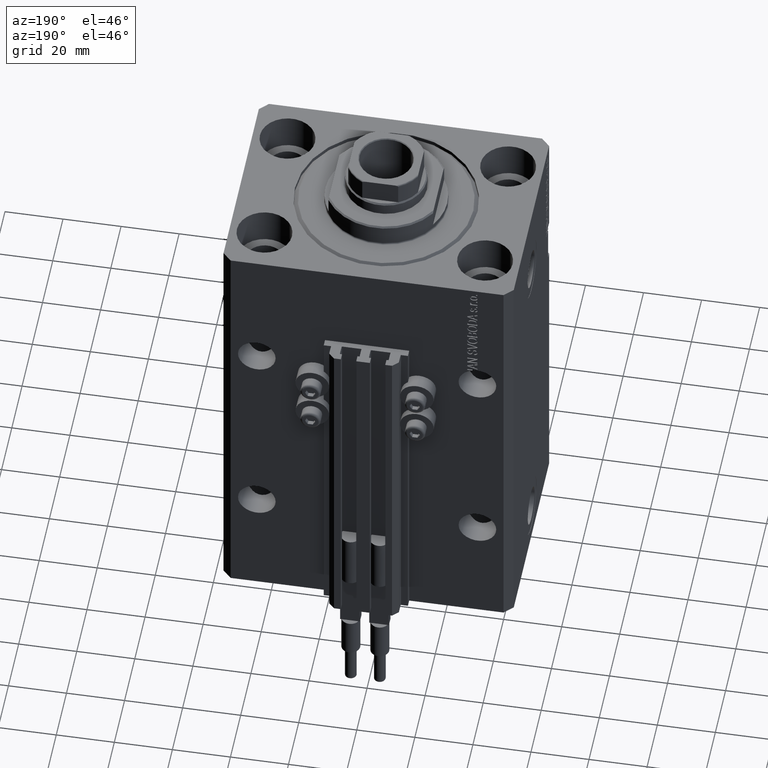
[diagram: clean part render]
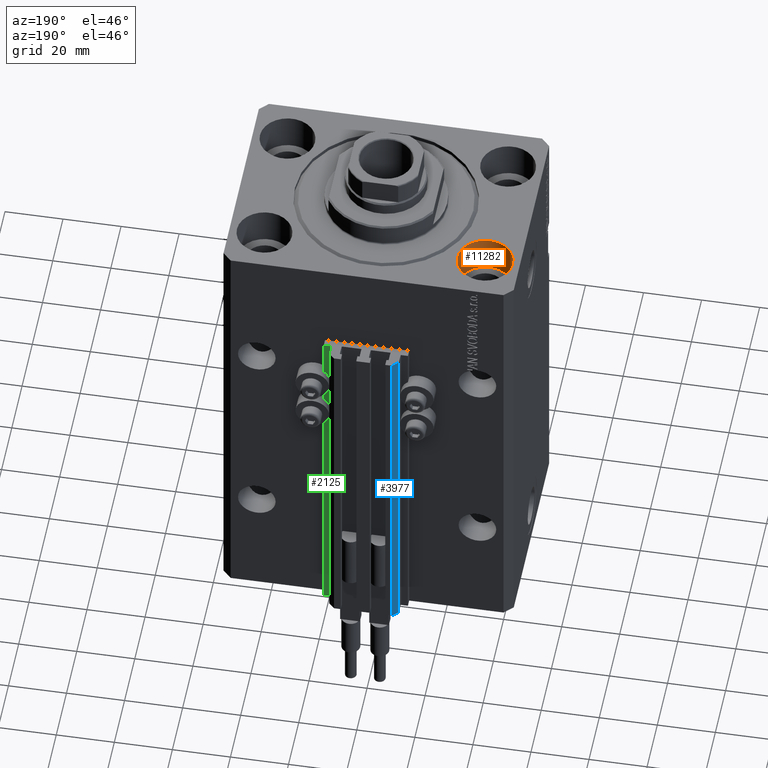
[diagram: same view with three faces highlighted in distinct colors, each labeled with its STEP entity id]
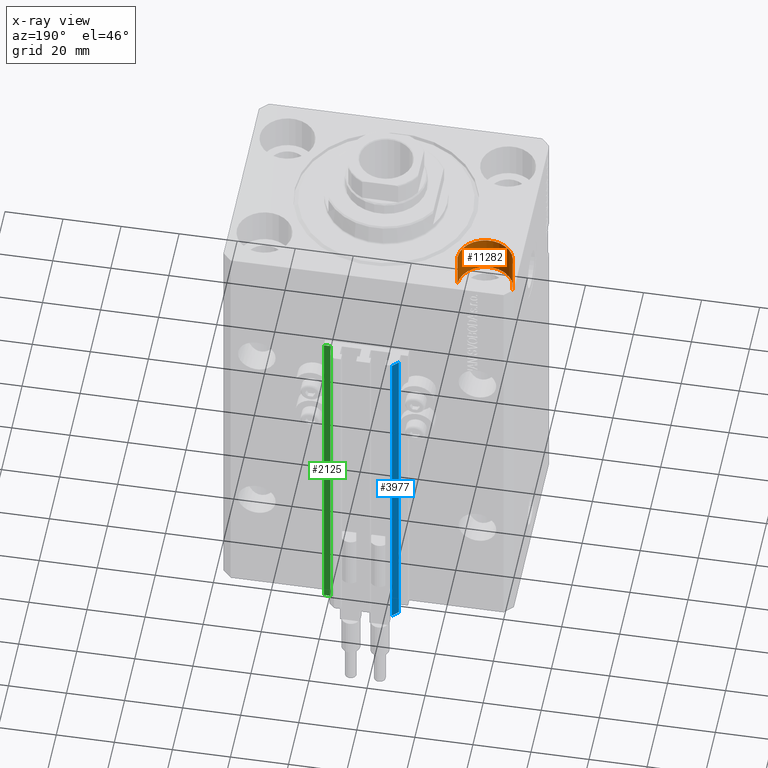
[diagram: x-ray of the same camera — body ghosted, the three highlighted faces saturated]
A machine part, auxiliary view with three faces highlighted in distinct colors.
The next image is the same camera in x-ray (body ghosted, the three faces saturated) — at least one of them is partly hidden behind the body in this view.
Their STEP definitions:

[orange] entity #11282 — the highlighted cylindrical surface (edge-blend (fillet) strip) has radius 9.5 mm, axis along (0, 0, 1).
#459 = VERTEX_POINT ( 'NONE', #24070 ) ;
#466 = ORIENTED_EDGE ( 'NONE', *, *, #28814, .T. ) ;
#1309 = DIRECTION ( 'NONE',  ( 0.000000000000000000, 0.000000000000000000, 1.000000000000000000 ) ) ;
#5278 = CARTESIAN_POINT ( 'NONE',  ( -38.00000000000000711, 22.50000000000000000, -13.00000000000000000 ) ) ;
#5400 = DIRECTION ( 'NONE',  ( 1.000000000000000000, 0.000000000000000000, 0.000000000000000000 ) ) ;
#6006 = ORIENTED_EDGE ( 'NONE', *, *, #17875, .T. ) ;
#6598 = VERTEX_POINT ( 'NONE', #28485 ) ;
#9120 = CARTESIAN_POINT ( 'NONE',  ( -38.00000000000000711, 22.50000000000000000, -13.00000000000000000 ) ) ;
#9626 = DIRECTION ( 'NONE',  ( -0.000000000000000000, -0.000000000000000000, 1.000000000000000000 ) ) ;
#11282 = ADVANCED_FACE ( 'NONE', ( #12829 ), #24489, .F. ) ;
#12829 = FACE_OUTER_BOUND ( 'NONE', #46587, .T. ) ;
#13175 = EDGE_CURVE ( 'NONE', #459, #33558, #36079, .T. ) ;
#13967 = AXIS2_PLACEMENT_3D ( 'NONE', #38685, #42159, #41671 ) ;
#16603 = ORIENTED_EDGE ( 'NONE', *, *, #13175, .F. ) ;
#17875 = EDGE_CURVE ( 'NONE', #6598, #41722, #36939, .T. ) ;
#18260 = CARTESIAN_POINT ( 'NONE',  ( -28.50000000000000355, 22.50000000000000000, -13.00000000000000000 ) ) ;
#18415 = LINE ( 'NONE', #22867, #26568 ) ;
#19971 = CARTESIAN_POINT ( 'NONE',  ( -28.50000000000000355, 22.50000000000000000, -13.00000000000000000 ) ) ;
#22867 = CARTESIAN_POINT ( 'NONE',  ( -47.50000000000000711, 22.50000000000000000, -13.00000000000000000 ) ) ;
#24070 = CARTESIAN_POINT ( 'NONE',  ( -47.50000000000000711, 22.50000000000000000, -13.00000000000000000 ) ) ;
#24489 = CYLINDRICAL_SURFACE ( 'NONE', #36831, 9.500000000000001776 ) ;
#26568 = VECTOR ( 'NONE', #37729, 1000.000000000000000 ) ;
#28485 = CARTESIAN_POINT ( 'NONE',  ( -47.50000000000000711, 22.50000000000000000, 0.000000000000000000 ) ) ;
#28814 = EDGE_CURVE ( 'NONE', #459, #6598, #18415, .T. ) ;
#30873 = LINE ( 'NONE', #19971, #47635 ) ;
#31776 = DIRECTION ( 'NONE',  ( 1.000000000000000000, 0.000000000000000000, 0.000000000000000000 ) ) ;
#32482 = CARTESIAN_POINT ( 'NONE',  ( -28.50000000000000355, 22.50000000000000000, 0.000000000000000000 ) ) ;
#33558 = VERTEX_POINT ( 'NONE', #18260 ) ;
#35077 = DIRECTION ( 'NONE',  ( -0.000000000000000000, -0.000000000000000000, 1.000000000000000000 ) ) ;
#36079 = CIRCLE ( 'NONE', #44005, 9.500000000000001776 ) ;
#36831 = AXIS2_PLACEMENT_3D ( 'NONE', #9120, #9626, #5400 ) ;
#36939 = CIRCLE ( 'NONE', #13967, 9.500000000000001776 ) ;
#37729 = DIRECTION ( 'NONE',  ( -0.000000000000000000, -0.000000000000000000, 1.000000000000000000 ) ) ;
#38685 = CARTESIAN_POINT ( 'NONE',  ( -38.00000000000000711, 22.50000000000000000, 0.000000000000000000 ) ) ;
#39893 = ORIENTED_EDGE ( 'NONE', *, *, #48593, .F. ) ;
#41671 = DIRECTION ( 'NONE',  ( 1.000000000000000000, 0.000000000000000000, 0.000000000000000000 ) ) ;
#41722 = VERTEX_POINT ( 'NONE', #32482 ) ;
#42159 = DIRECTION ( 'NONE',  ( 0.000000000000000000, 0.000000000000000000, 1.000000000000000000 ) ) ;
#44005 = AXIS2_PLACEMENT_3D ( 'NONE', #5278, #1309, #31776 ) ;
#46587 = EDGE_LOOP ( 'NONE', ( #16603, #466, #6006, #39893 ) ) ;
#47635 = VECTOR ( 'NONE', #35077, 1000.000000000000000 ) ;
#48593 = EDGE_CURVE ( 'NONE', #33558, #41722, #30873, .T. ) ;

[blue] entity #3977 — the highlighted planar face has unit normal (-0.7071, 0.7071, 0).
#1989 = CARTESIAN_POINT ( 'NONE',  ( -10.00000000000000000, 45.49999999999999289, -33.00000000000000000 ) ) ;
#3006 = LINE ( 'NONE', #29511, #40189 ) ;
#3013 = EDGE_LOOP ( 'NONE', ( #16289, #22603, #32097, #4362 ) ) ;
#3977 = ADVANCED_FACE ( 'NONE', ( #20625 ), #25332, .T. ) ;
#4256 = LINE ( 'NONE', #24063, #48706 ) ;
#4362 = ORIENTED_EDGE ( 'NONE', *, *, #28026, .T. ) ;
#8246 = CARTESIAN_POINT ( 'NONE',  ( -12.00000000000000000, 43.49999999999998579, -155.0000000000000000 ) ) ;
#8550 = VECTOR ( 'NONE', #10525, 1000.000000000000227 ) ;
#10525 = DIRECTION ( 'NONE',  ( -0.7071067811865460184, -0.7071067811865490160, 0.000000000000000000 ) ) ;
#11202 = VERTEX_POINT ( 'NONE', #23272 ) ;
#16289 = ORIENTED_EDGE ( 'NONE', *, *, #40956, .F. ) ;
#18130 = DIRECTION ( 'NONE',  ( 0.000000000000000000, 0.000000000000000000, 1.000000000000000000 ) ) ;
#18138 = DIRECTION ( 'NONE',  ( -0.7071067811865490160, 0.7071067811865461294, 0.000000000000000000 ) ) ;
#19373 = DIRECTION ( 'NONE',  ( 0.000000000000000000, 0.000000000000000000, 1.000000000000000000 ) ) ;
#19765 = VECTOR ( 'NONE', #25295, 1000.000000000000227 ) ;
#20625 = FACE_OUTER_BOUND ( 'NONE', #3013, .T. ) ;
#22603 = ORIENTED_EDGE ( 'NONE', *, *, #32171, .F. ) ;
#22893 = CARTESIAN_POINT ( 'NONE',  ( -10.00000000000000000, 45.49999999999999289, -155.0000000000000000 ) ) ;
#23272 = CARTESIAN_POINT ( 'NONE',  ( -10.00000000000000000, 45.49999999999999289, -155.0000000000000000 ) ) ;
#24063 = CARTESIAN_POINT ( 'NONE',  ( -12.00000000000000000, 43.49999999999998579, -155.0000000000000000 ) ) ;
#25295 = DIRECTION ( 'NONE',  ( -0.7071067811865460184, -0.7071067811865490160, 0.000000000000000000 ) ) ;
#25332 = PLANE ( 'NONE',  #45366 ) ;
#26359 = LINE ( 'NONE', #22893, #8550 ) ;
#28026 = EDGE_CURVE ( 'NONE', #46158, #34244, #4256, .T. ) ;
#28153 = CARTESIAN_POINT ( 'NONE',  ( -10.00000000000000000, 45.49999999999999289, -33.00000000000000000 ) ) ;
#29511 = CARTESIAN_POINT ( 'NONE',  ( -10.00000000000000000, 45.49999999999999289, -155.0000000000000000 ) ) ;
#32097 = ORIENTED_EDGE ( 'NONE', *, *, #37014, .T. ) ;
#32171 = EDGE_CURVE ( 'NONE', #11202, #44853, #3006, .T. ) ;
#32751 = DIRECTION ( 'NONE',  ( -0.7071067811865460184, -0.7071067811865489050, 0.000000000000000000 ) ) ;
#34244 = VERTEX_POINT ( 'NONE', #35188 ) ;
#35188 = CARTESIAN_POINT ( 'NONE',  ( -12.00000000000000000, 43.49999999999998579, -33.00000000000000000 ) ) ;
#36964 = CARTESIAN_POINT ( 'NONE',  ( -10.00000000000000000, 45.49999999999999289, -155.0000000000000000 ) ) ;
#37014 = EDGE_CURVE ( 'NONE', #11202, #46158, #26359, .T. ) ;
#40189 = VECTOR ( 'NONE', #18130, 1000.000000000000000 ) ;
#40956 = EDGE_CURVE ( 'NONE', #44853, #34244, #43625, .T. ) ;
#43625 = LINE ( 'NONE', #1989, #19765 ) ;
#44853 = VERTEX_POINT ( 'NONE', #28153 ) ;
#45366 = AXIS2_PLACEMENT_3D ( 'NONE', #36964, #18138, #32751 ) ;
#46158 = VERTEX_POINT ( 'NONE', #8246 ) ;
#48706 = VECTOR ( 'NONE', #19373, 1000.000000000000000 ) ;

[green] entity #2125 — the highlighted planar face has unit normal (0, 1, 0).
#1545 = VERTEX_POINT ( 'NONE', #38037 ) ;
#2125 = ADVANCED_FACE ( 'NONE', ( #32244 ), #31739, .T. ) ;
#2874 = EDGE_CURVE ( 'NONE', #1545, #26248, #18670, .T. ) ;
#4798 = EDGE_LOOP ( 'NONE', ( #19603, #31412, #40840, #32205 ) ) ;
#5030 = CARTESIAN_POINT ( 'NONE',  ( 12.20000000000000107, 40.00000000000002132, -155.0000000000000000 ) ) ;
#5097 = CARTESIAN_POINT ( 'NONE',  ( 14.49999999999999645, 40.00000000000002132, -33.00000000000000000 ) ) ;
#6128 = VECTOR ( 'NONE', #9575, 1000.000000000000000 ) ;
#6752 = VERTEX_POINT ( 'NONE', #15500 ) ;
#8270 = DIRECTION ( 'NONE',  ( 0.000000000000000000, 0.000000000000000000, 1.000000000000000000 ) ) ;
#8830 = LINE ( 'NONE', #28396, #6128 ) ;
#9516 = EDGE_CURVE ( 'NONE', #26248, #6752, #42213, .T. ) ;
#9575 = DIRECTION ( 'NONE',  ( -1.000000000000000000, 0.000000000000000000, 0.000000000000000000 ) ) ;
#11278 = VECTOR ( 'NONE', #20622, 1000.000000000000000 ) ;
#12448 = LINE ( 'NONE', #35229, #11278 ) ;
#15253 = VECTOR ( 'NONE', #29568, 1000.000000000000000 ) ;
#15500 = CARTESIAN_POINT ( 'NONE',  ( 12.20000000000000107, 40.00000000000002132, -33.00000000000000000 ) ) ;
#18670 = LINE ( 'NONE', #34265, #15253 ) ;
#19399 = EDGE_CURVE ( 'NONE', #27333, #6752, #8830, .T. ) ;
#19603 = ORIENTED_EDGE ( 'NONE', *, *, #19399, .F. ) ;
#20622 = DIRECTION ( 'NONE',  ( 0.000000000000000000, 0.000000000000000000, 1.000000000000000000 ) ) ;
#22510 = DIRECTION ( 'NONE',  ( 0.000000000000000000, 0.000000000000000000, 1.000000000000000000 ) ) ;
#25563 = AXIS2_PLACEMENT_3D ( 'NONE', #30177, #41575, #22510 ) ;
#25699 = VECTOR ( 'NONE', #8270, 1000.000000000000000 ) ;
#26248 = VERTEX_POINT ( 'NONE', #43059 ) ;
#27333 = VERTEX_POINT ( 'NONE', #5097 ) ;
#28396 = CARTESIAN_POINT ( 'NONE',  ( 14.49999999999999645, 40.00000000000002132, -33.00000000000000000 ) ) ;
#29568 = DIRECTION ( 'NONE',  ( -1.000000000000000000, 0.000000000000000000, 0.000000000000000000 ) ) ;
#30177 = CARTESIAN_POINT ( 'NONE',  ( 14.49999999999999645, 40.00000000000002132, -155.0000000000000000 ) ) ;
#31412 = ORIENTED_EDGE ( 'NONE', *, *, #46139, .F. ) ;
#31739 = PLANE ( 'NONE',  #25563 ) ;
#32205 = ORIENTED_EDGE ( 'NONE', *, *, #9516, .T. ) ;
#32244 = FACE_OUTER_BOUND ( 'NONE', #4798, .T. ) ;
#34265 = CARTESIAN_POINT ( 'NONE',  ( 14.49999999999999645, 40.00000000000002132, -155.0000000000000000 ) ) ;
#35229 = CARTESIAN_POINT ( 'NONE',  ( 14.49999999999999645, 40.00000000000002132, -155.0000000000000000 ) ) ;
#38037 = CARTESIAN_POINT ( 'NONE',  ( 14.49999999999999645, 40.00000000000002132, -155.0000000000000000 ) ) ;
#40840 = ORIENTED_EDGE ( 'NONE', *, *, #2874, .T. ) ;
#41575 = DIRECTION ( 'NONE',  ( 0.000000000000000000, 1.000000000000000000, -0.000000000000000000 ) ) ;
#42213 = LINE ( 'NONE', #5030, #25699 ) ;
#43059 = CARTESIAN_POINT ( 'NONE',  ( 12.20000000000000107, 40.00000000000002132, -155.0000000000000000 ) ) ;
#46139 = EDGE_CURVE ( 'NONE', #1545, #27333, #12448, .T. ) ;